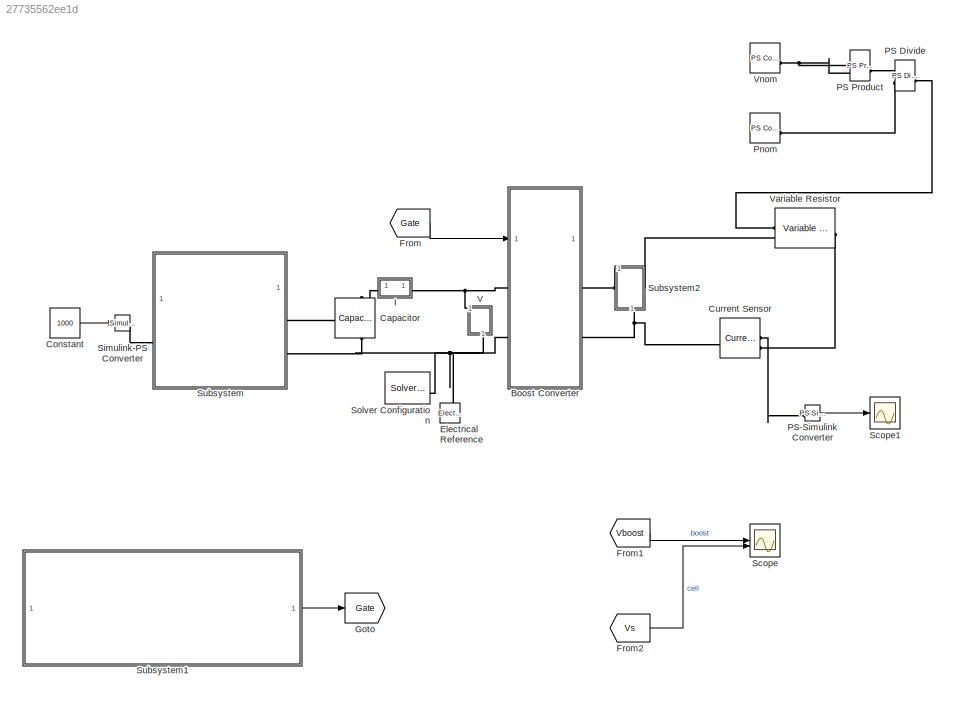
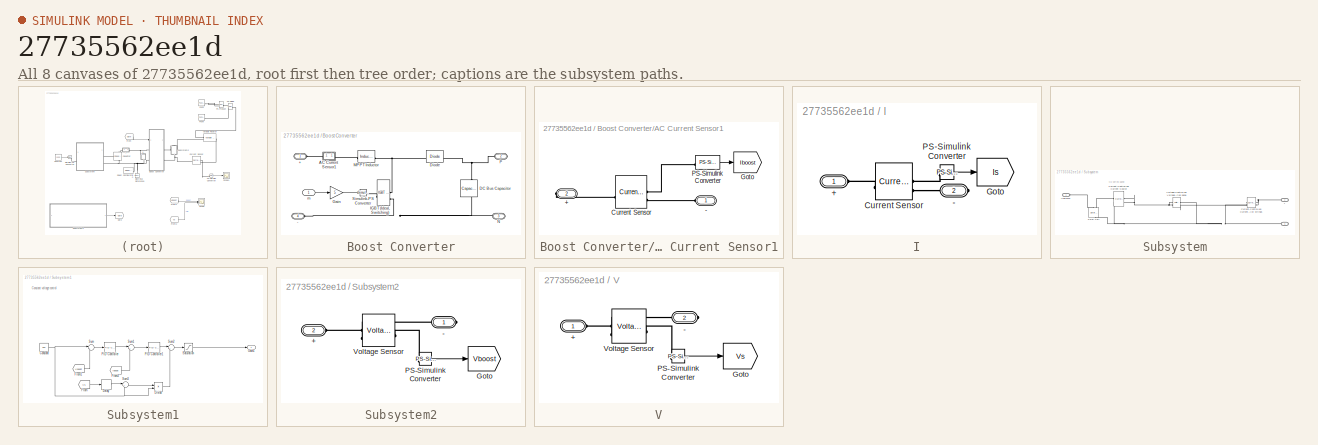
[diagram: thumbnail index - all 8 canvases of the model, root first then tree order]
MODEL slx_27735562ee1d
KIND model
CONFIG AbsTol = auto
CONFIG EnableMultiTasking = off
CONFIG FixedStep = auto
CONFIG MaxStep = auto
CONFIG MinStep = auto
CONFIG RelTol = 1e-3
CONFIG SampleTimeConstraint = Unconstrained
CONFIG SolverName = VariableStepAuto
CONFIG StartTime = 0.0
CONFIG StopTime = 1.0
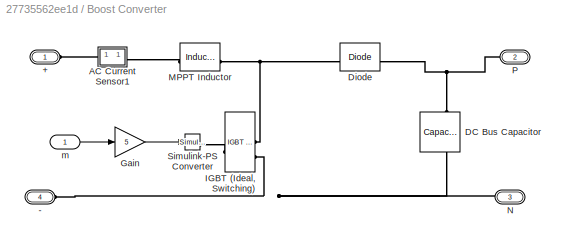
BLOCK [SubSystem] Boost Converter
  VariantControl = boostCircuit == 1
BLOCK [PMIOPort] Boost Converter/+
  Side = Left
BLOCK [PMIOPort] Boost Converter/-
  Port = 4
  Side = Left
BLOCK [SubSystem] Boost Converter/AC Current Sensor1
  NameLocation = top
BLOCK [PMIOPort] Boost Converter/AC Current Sensor1/+
  Port = 2
  Side = Right
BLOCK [PMIOPort] Boost Converter/AC Current Sensor1/-
  Side = Left
BLOCK [Reference] Boost Converter/AC Current Sensor1/Current Sensor  REF=fl_lib/Electrical/Electrical Sensors/Current Sensor
  SourceBlock = fl_lib/Electrical/Electrical Sensors/Current Sensor
  SourceType = Current Sensor
BLOCK [Goto] Boost Converter/AC Current Sensor1/Goto
  GotoTag = Iboost
  TagVisibility = global
BLOCK [Reference] Boost Converter/AC Current Sensor1/PS-Simulink Converter  REF=nesl_utility/PS-Simulink
Converter
  SourceBlock = nesl_utility/PS-Simulink\nConverter
  SourceType = PS-Simulink\nConverter
BLOCK [Reference] Boost Converter/DC Bus Capacitor  REF=fl_lib/Electrical/Electrical Elements/Capacitor
  NameLocation = left
  SourceBlock = fl_lib/Electrical/Electrical Elements/Capacitor
  SourceType = Capacitor
BLOCK [Reference] Boost Converter/Diode  REF=fl_lib/Electrical/Electrical Elements/Diode
  SourceBlock = fl_lib/Electrical/Electrical Elements/Diode
  SourceType = Diode
BLOCK [Gain] Boost Converter/Gain
  Gain = 5
BLOCK [Reference] Boost Converter/IGBT (Ideal, Switching)  REF=ee_lib/Semiconductors &
Converters/IGBT
(Ideal,
Switching)
  SourceBlock = ee_lib/Semiconductors &\nConverters/IGBT\n(Ideal,\nSwitching)
  SourceType = IGBT\n(Ideal,\nSwitching)
BLOCK [Reference] Boost Converter/MPPT Inductor  REF=ee_lib/Passive/Inductor
  SourceBlock = ee_lib/Passive/Inductor
  SourceType = Inductor
BLOCK [PMIOPort] Boost Converter/N
  Port = 3
  Side = Right
BLOCK [PMIOPort] Boost Converter/P
  Port = 2
  Side = Right
BLOCK [Reference] Boost Converter/Simulink-PS Converter  REF=nesl_utility/Simulink-PS
Converter
  SourceBlock = nesl_utility/Simulink-PS\nConverter
  SourceType = Simulink-PS\nConverter
BLOCK [Inport] Boost Converter/m
BLOCK [Reference] Capacitor  REF=fl_lib/Electrical/Electrical Elements/Capacitor
  NameLocation = left
  SourceBlock = fl_lib/Electrical/Electrical Elements/Capacitor
  SourceType = Capacitor
BLOCK [Constant] Constant
  SampleTime = 20e3
  Value = 1000
BLOCK [Reference] Current Sensor  REF=fl_lib/Electrical/Electrical Sensors/Current Sensor
  SourceBlock = fl_lib/Electrical/Electrical Sensors/Current Sensor
  SourceType = Current Sensor
BLOCK [Reference] Electrical Reference  REF=fl_lib/Electrical/Electrical Elements/Electrical Reference
  NameLocation = right
  SourceBlock = fl_lib/Electrical/Electrical Elements/Electrical Reference
  SourceType = Electrical Reference
BLOCK [From] From
  GotoTag = Gate
BLOCK [From] From1
  GotoTag = Vboost
  TagVisibility = global
BLOCK [From] From2
  GotoTag = Vs
  TagVisibility = global
BLOCK [Goto] Goto
  GotoTag = Gate
BLOCK [SubSystem] I
BLOCK [PMIOPort] I/+
  Side = Left
BLOCK [PMIOPort] I/-
  Port = 2
  Side = Right
BLOCK [Reference] I/Current Sensor  REF=fl_lib/Electrical/Electrical Sensors/Current Sensor
  SourceBlock = fl_lib/Electrical/Electrical Sensors/Current Sensor
  SourceType = Current Sensor
BLOCK [Goto] I/Goto
  GotoTag = Is
  TagVisibility = global
BLOCK [Reference] I/PS-Simulink Converter  REF=nesl_utility/PS-Simulink
Converter
  SourceBlock = nesl_utility/PS-Simulink\nConverter
  SourceType = PS-Simulink\nConverter
BLOCK [Reference] PS Divide  REF=fl_lib/Physical Signals/Functions/PS Divide
  SourceBlock = fl_lib/Physical Signals/Functions/PS Divide
  SourceType = PS Divide
BLOCK [Reference] PS Product  REF=fl_lib/Physical Signals/Functions/PS Product
  SourceBlock = fl_lib/Physical Signals/Functions/PS Product
  SourceType = PS Product
BLOCK [Reference] PS-Simulink Converter  REF=nesl_utility/PS-Simulink
Converter
  SourceBlock = nesl_utility/PS-Simulink\nConverter
  SourceType = PS-Simulink\nConverter
BLOCK [Reference] Pnom  REF=fl_lib/Physical Signals/Sources/PS Constant
  SourceBlock = fl_lib/Physical Signals/Sources/PS Constant
  SourceType = PS Constant
BLOCK [Scope] Scope
  Floating = off
  NumInputPorts = 2
  ScopeSpecificationString = Simulink.scopes.TimeScopeBlockCfg('CurrentConfiguration', extmgr.ConfigurationSet(extmgr.Configuration('Core','General UI',true),extmgr.Configuration('Core','Source UI',true),extmgr.Configuration('Sources','WiredSimulink',true),extmgr.Configuration('Visuals','Time Domain',true,'SerializedDisplays',{struct('MinYLimReal','-47.66689','MaxYLimReal','429.01103','YLabelReal','','MinYLimMag','0.00000','M...<+1395ch>
BLOCK [Scope] Scope1
  Floating = off
  NumInputPorts = 1
  ScopeSpecificationString = Simulink.scopes.TimeScopeBlockCfg('CurrentConfiguration', extmgr.ConfigurationSet(extmgr.Configuration('Core','General UI',true),extmgr.Configuration('Core','Source UI',true),extmgr.Configuration('Sources','WiredSimulink',true,'DataLoggingVariableName','ScopeData1'),extmgr.Configuration('Visuals','Time Domain',true,'SerializedDisplays',{struct('MinYLimReal','-3.9665','MaxYLimReal','-3.91472','YLab...<+1405ch>
BLOCK [Reference] Simulink-PS Converter  REF=nesl_utility/Simulink-PS
Converter
  SourceBlock = nesl_utility/Simulink-PS\nConverter
  SourceType = Simulink-PS\nConverter
BLOCK [Reference] Solver Configuration  REF=nesl_utility/Solver
Configuration
  SourceBlock = nesl_utility/Solver\nConfiguration
  SourceType = Solver\nConfiguration
BLOCK [SubSystem] Subsystem
BLOCK [PMIOPort] Subsystem/+
  Port = 2
  Side = Right
BLOCK [PMIOPort] Subsystem/-
  Port = 3
  Side = Right
BLOCK [Reference] Subsystem/Current-Controlled Current Source  REF=fl_lib/Electrical/Electrical Sources/Current-Controlled
Current Source
  SourceBlock = fl_lib/Electrical/Electrical Sources/Current-Controlled\nCurrent Source
  SourceType = Current-Controlled\nCurrent Source
BLOCK [Reference] Subsystem/Current-Controlled Current Source- Scale panel current to Np parallel strings  REF=fl_lib/Electrical/Electrical Sources/Current-Controlled
Current Source
  SourceBlock = fl_lib/Electrical/Electrical Sources/Current-Controlled\nCurrent Source
  SourceType = Current-Controlled\nCurrent Source
BLOCK [PMIOPort] Subsystem/Iradiance
  Side = Left
BLOCK [Reference] Subsystem/Solar Cell  REF=ee_lib/Sources/Solar Cell
  AttributesFormatString = Amerisolar:AS_6M30_HC_320W
  NameLocation = right
  SourceBlock = ee_lib/Sources/Solar Cell
  SourceType = Solar Cell
  Tag = {'toolbox/physmod/elec/library/m/ee_lib_parts';'Sources/Solar_Cell/Amerisolar/AS_6M30_HC_320W.xml'}
BLOCK [Reference] Subsystem/Voltage-Controlled Voltage Source - Scale panel voltage to Ns series panel  REF=fl_lib/Electrical/Electrical Sources/Voltage-Controlled
Voltage Source
  SourceBlock = fl_lib/Electrical/Electrical Sources/Voltage-Controlled\nVoltage Source
  SourceType = Voltage-Controlled\nVoltage Source
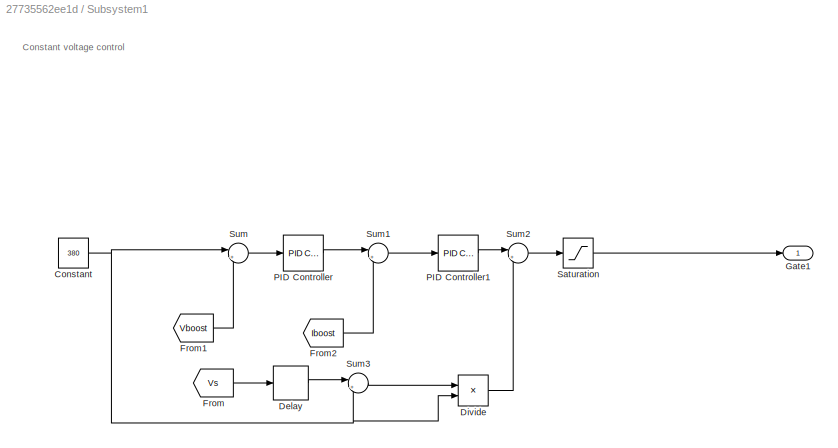
BLOCK [SubSystem] Subsystem1
BLOCK [Constant] Subsystem1/Constant
  Value = 380
BLOCK [Delay] Subsystem1/Delay
  InputPortMap = u0
BLOCK [Product] Subsystem1/Divide
  Inputs = */
BLOCK [From] Subsystem1/From
  GotoTag = Vs
  TagVisibility = global
BLOCK [From] Subsystem1/From1
  GotoTag = Vboost
  TagVisibility = global
BLOCK [From] Subsystem1/From2
  GotoTag = Iboost
  TagVisibility = global
BLOCK [Outport] Subsystem1/Gate1
BLOCK [Reference] Subsystem1/PID Controller  REF=slpidlib/PID Controller
  LibrarySourceBlock = simulink/Continuous/PID Controller
  SourceBlock = slpidlib/PID Controller
  SourceType = PID 1dof
BLOCK [Reference] Subsystem1/PID Controller1  REF=slpidlib/PID Controller
  LibrarySourceBlock = simulink/Continuous/PID Controller
  SourceBlock = slpidlib/PID Controller
  SourceType = PID 1dof
BLOCK [Saturate] Subsystem1/Saturation
  LowerLimit = 0
  UpperLimit = 1
BLOCK [Sum] Subsystem1/Sum
  Inputs = |+-
BLOCK [Sum] Subsystem1/Sum1
  Inputs = |+-
BLOCK [Sum] Subsystem1/Sum2
  Inputs = |+-
BLOCK [Sum] Subsystem1/Sum3
  Inputs = |+-
BLOCK [SubSystem] Subsystem2
  NameLocation = left
BLOCK [PMIOPort] Subsystem2/+
  Port = 2
  Side = Left
BLOCK [PMIOPort] Subsystem2/-
  Side = Right
BLOCK [Goto] Subsystem2/Goto
  GotoTag = Vboost
  TagVisibility = global
BLOCK [Reference] Subsystem2/PS-Simulink Converter  REF=nesl_utility/PS-Simulink
Converter
  SourceBlock = nesl_utility/PS-Simulink\nConverter
  SourceType = PS-Simulink\nConverter
BLOCK [Reference] Subsystem2/Voltage Sensor  REF=fl_lib/Electrical/Electrical Sensors/Voltage Sensor
  NameLocation = top
  SourceBlock = fl_lib/Electrical/Electrical Sensors/Voltage Sensor
  SourceType = Voltage Sensor
BLOCK [SubSystem] V
  NameLocation = left
BLOCK [PMIOPort] V/+
  Side = Left
BLOCK [PMIOPort] V/-
  Port = 2
  Side = Right
BLOCK [Goto] V/Goto
  GotoTag = Vs
  TagVisibility = global
BLOCK [Reference] V/PS-Simulink Converter  REF=nesl_utility/PS-Simulink
Converter
  SourceBlock = nesl_utility/PS-Simulink\nConverter
  SourceType = PS-Simulink\nConverter
BLOCK [Reference] V/Voltage Sensor  REF=fl_lib/Electrical/Electrical Sensors/Voltage Sensor
  NameLocation = top
  SourceBlock = fl_lib/Electrical/Electrical Sensors/Voltage Sensor
  SourceType = Voltage Sensor
BLOCK [Reference] Variable Resistor  REF=fl_lib/Electrical/Electrical Elements/Variable Resistor
  SourceBlock = fl_lib/Electrical/Electrical Elements/Variable Resistor
  SourceType = Variable Resistor
BLOCK [Reference] Vnom  REF=fl_lib/Physical Signals/Sources/PS Constant
  SourceBlock = fl_lib/Physical Signals/Sources/PS Constant
  SourceType = PS Constant
ANNOTATION Subsystem: Ns series panel
ANNOTATION Subsystem1: Constant voltage control
LINE Boost Converter/AC Current Sensor1/PS-Simulink Converter:1 -> Boost Converter/AC Current Sensor1/Goto:1
LINE Boost Converter/Gain:1 -> Boost Converter/Simulink-PS Converter:1
LINE Boost Converter/m:1 -> Boost Converter/Gain:1
LINE Constant:1 -> Simulink-PS Converter:1
LINE From1:1 -> Scope:1
LINE From2:1 -> Scope:2
LINE From:1 -> Boost Converter:1
LINE I/PS-Simulink Converter:1 -> I/Goto:1
LINE PS-Simulink Converter:1 -> Scope1:1
NET Subsystem1/Constant:1 -> Subsystem1/Divide:2, Subsystem1/Sum3:2, Subsystem1/Sum:1
LINE Subsystem1/Delay:1 -> Subsystem1/Sum3:1
LINE Subsystem1/Divide:1 -> Subsystem1/Sum2:2
LINE Subsystem1/From1:1 -> Subsystem1/Sum:2
LINE Subsystem1/From2:1 -> Subsystem1/Sum1:2
LINE Subsystem1/From:1 -> Subsystem1/Delay:1
LINE Subsystem1/PID Controller1:1 -> Subsystem1/Sum2:1
LINE Subsystem1/PID Controller:1 -> Subsystem1/Sum1:1
LINE Subsystem1/Saturation:1 -> Subsystem1/Gate1:1
LINE Subsystem1/Sum1:1 -> Subsystem1/PID Controller1:1
LINE Subsystem1/Sum2:1 -> Subsystem1/Saturation:1
LINE Subsystem1/Sum3:1 -> Subsystem1/Divide:1
LINE Subsystem1/Sum:1 -> Subsystem1/PID Controller:1
LINE Subsystem1:1 -> Goto:1
LINE Subsystem2/PS-Simulink Converter:1 -> Subsystem2/Goto:1
LINE V/PS-Simulink Converter:1 -> V/Goto:1
PLINE Boost Converter/+:RConn1 -- Boost Converter/AC Current Sensor1:RConn1
PNET net1: Boost Converter/-:RConn1 -- Boost Converter/DC Bus Capacitor:RConn1 -- Boost Converter/IGBT (Ideal, Switching):RConn2 -- Boost Converter/N:RConn1
PLINE Boost Converter/AC Current Sensor1/+:RConn1 -- Boost Converter/AC Current Sensor1/Current Sensor:LConn1
PLINE Boost Converter/AC Current Sensor1/-:RConn1 -- Boost Converter/AC Current Sensor1/Current Sensor:RConn2
PLINE Boost Converter/AC Current Sensor1/Current Sensor:RConn1 -- Boost Converter/AC Current Sensor1/PS-Simulink Converter:LConn1
PLINE Boost Converter/AC Current Sensor1:LConn1 -- Boost Converter/MPPT Inductor:LConn1
PNET net2: Boost Converter/DC Bus Capacitor:LConn1 -- Boost Converter/Diode:RConn1 -- Boost Converter/P:RConn1
PNET net3: Boost Converter/Diode:LConn1 -- Boost Converter/IGBT (Ideal, Switching):RConn1 -- Boost Converter/MPPT Inductor:RConn1
PLINE Boost Converter/IGBT (Ideal, Switching):LConn1 -- Boost Converter/Simulink-PS Converter:RConn1
PNET net4: Boost Converter:LConn1 -- I:RConn1 -- V:LConn1
PNET net5: Boost Converter:LConn2 -- Capacitor:RConn1 -- Electrical Reference:LConn1 -- Solver Configuration:RConn1 -- Subsystem:RConn2 -- V:RConn1
PNET net6: Boost Converter:RConn1 -- Subsystem2:LConn1 -- Variable Resistor:LConn2
PNET net7: Boost Converter:RConn2 -- Current Sensor:LConn1 -- Subsystem2:RConn1
PNET net8: Capacitor:LConn1 -- I:LConn1 -- Subsystem:RConn1
PLINE Current Sensor:RConn1 -- PS-Simulink Converter:LConn1
PLINE Current Sensor:RConn2 -- Variable Resistor:RConn1
PLINE I/+:RConn1 -- I/Current Sensor:LConn1
PLINE I/-:RConn1 -- I/Current Sensor:RConn2
PLINE I/Current Sensor:RConn1 -- I/PS-Simulink Converter:LConn1
PLINE PS Divide:LConn1 -- PS Product:RConn1
PLINE PS Divide:LConn2 -- Pnom:RConn1
PLINE PS Divide:RConn1 -- Variable Resistor:LConn1
PNET net9: PS Product:LConn1 -- PS Product:LConn2 -- Vnom:RConn1
PLINE Simulink-PS Converter:RConn1 -- Subsystem:LConn1
PNET net10: Subsystem/+:RConn1 -- Subsystem/Current-Controlled Current Source- Scale panel current to Np parallel strings:RConn1 -- Subsystem/Current-Controlled Current Source- Scale panel current to Np parallel strings:RConn2
PNET net11: Subsystem/-:RConn1 -- Subsystem/Current-Controlled Current Source- Scale panel current to Np parallel strings:LConn2 -- Subsystem/Current-Controlled Current Source:LConn2 -- Subsystem/Solar Cell:RConn1 -- Subsystem/Voltage-Controlled Voltage Source - Scale panel voltage to Ns series panel:LConn1
PLINE Subsystem/Current-Controlled Current Source- Scale panel current to Np parallel strings:LConn1 -- Subsystem/Voltage-Controlled Voltage Source - Scale panel voltage to Ns series panel:LConn2
PLINE Subsystem/Current-Controlled Current Source:LConn1 -- Subsystem/Solar Cell:LConn2
PNET net12: Subsystem/Current-Controlled Current Source:RConn1 -- Subsystem/Current-Controlled Current Source:RConn2 -- Subsystem/Voltage-Controlled Voltage Source - Scale panel voltage to Ns series panel:RConn1 -- Subsystem/Voltage-Controlled Voltage Source - Scale panel voltage to Ns series panel:RConn2
PLINE Subsystem/Iradiance:RConn1 -- Subsystem/Solar Cell:LConn1
PLINE Subsystem2/+:RConn1 -- Subsystem2/Voltage Sensor:LConn1
PLINE Subsystem2/-:RConn1 -- Subsystem2/Voltage Sensor:RConn2
PLINE Subsystem2/PS-Simulink Converter:LConn1 -- Subsystem2/Voltage Sensor:RConn1
PLINE V/+:RConn1 -- V/Voltage Sensor:LConn1
PLINE V/-:RConn1 -- V/Voltage Sensor:RConn2
PLINE V/PS-Simulink Converter:LConn1 -- V/Voltage Sensor:RConn1
note: NET lines group one-source signal fan-out (src -> all destinations, sorted); 1:1 wires keep LINE; PNET lines group multi-terminal physical nets as a canonical sorted terminal list (undirected conserving connections); 2-terminal nets keep the pairwise PLINE form
